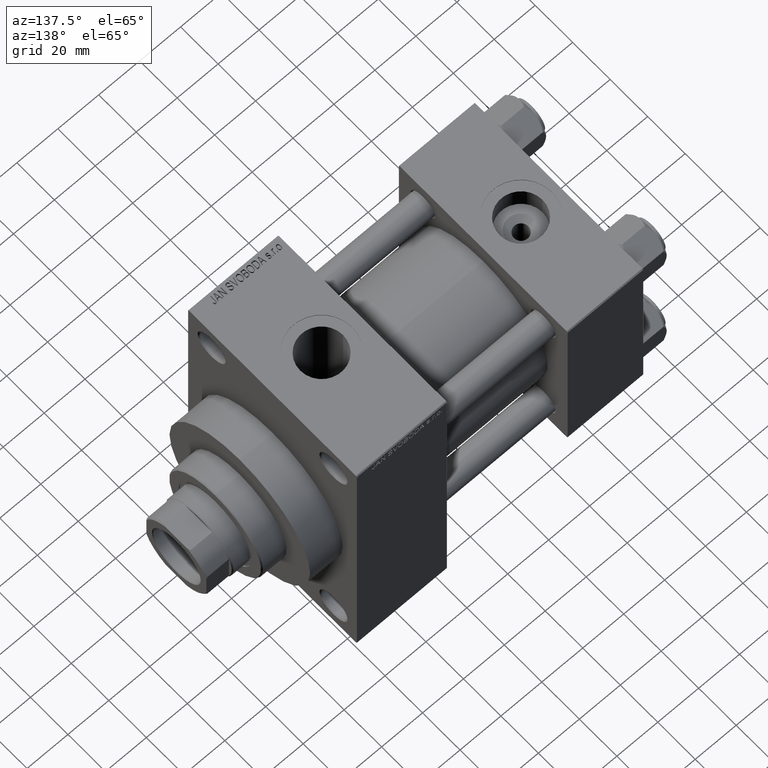
[diagram: clean part render]
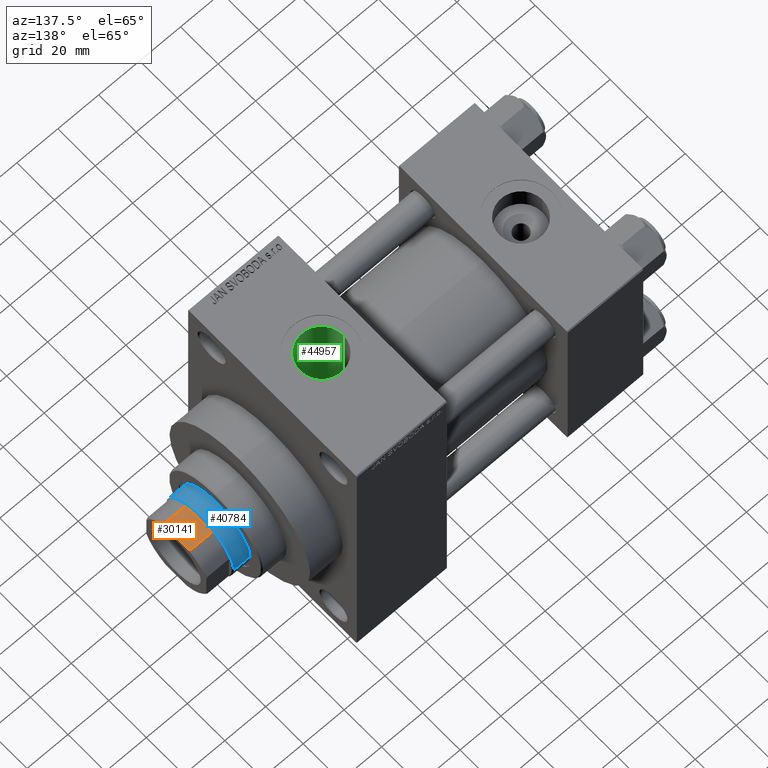
[diagram: same view with three faces highlighted in distinct colors, each labeled with its STEP entity id]
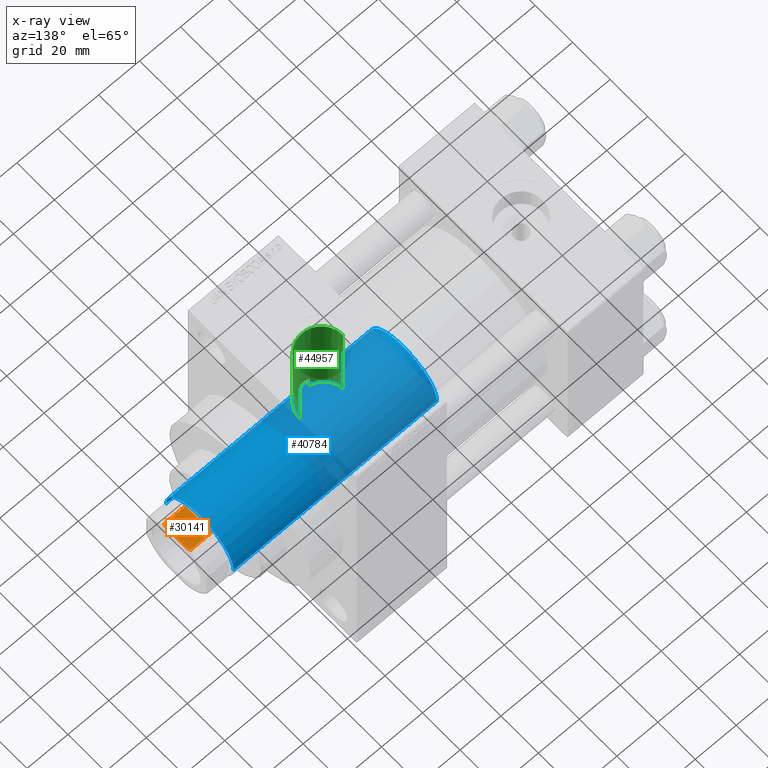
[diagram: x-ray of the same camera — body ghosted, the three highlighted faces saturated]
A machine part, auxiliary view with three faces highlighted in distinct colors.
The next image is the same camera in x-ray (body ghosted, the three faces saturated) — at least one of them is partly hidden behind the body in this view.
Their STEP definitions:

[orange] entity #30141 — the highlighted planar face has unit normal (0, 0, -1).
#598 = CARTESIAN_POINT ( 'NONE',  ( -16.00000000000000000, -16.00000000000000000, 150.0000000000000284 ) ) ;
#1169 = DIRECTION ( 'NONE',  ( -0.000000000000000000, -0.000000000000000000, 1.000000000000000000 ) ) ;
#1999 = CARTESIAN_POINT ( 'NONE',  ( 7.088723439378915359, -16.00000000000000000, 139.0000000000000000 ) ) ;
#3870 = VERTEX_POINT ( 'NONE', #31204 ) ;
#4221 = CARTESIAN_POINT ( 'NONE',  ( 7.088723439378915359, -16.00000000000000000, 149.5000000000000000 ) ) ;
#6235 = EDGE_CURVE ( 'NONE', #22852, #14662, #42317, .T. ) ;
#7188 = VECTOR ( 'NONE', #1169, 1000.000000000000000 ) ;
#7257 = ORIENTED_EDGE ( 'NONE', *, *, #10713, .T. ) ;
#7833 = VECTOR ( 'NONE', #46360, 1000.000000000000000 ) ;
#8308 = VERTEX_POINT ( 'NONE', #18653 ) ;
#9140 = CARTESIAN_POINT ( 'NONE',  ( -16.00000000000000000, -16.00000000000000000, 150.0000000000000284 ) ) ;
#10041 = VERTEX_POINT ( 'NONE', #21938 ) ;
#10195 = LINE ( 'NONE', #14015, #40765 ) ;
#10713 = EDGE_CURVE ( 'NONE', #8308, #21845, #36334, .T. ) ;
#11333 = DIRECTION ( 'NONE',  ( 0.000000000000000000, -0.000000000000000000, 1.000000000000000000 ) ) ;
#14015 = CARTESIAN_POINT ( 'NONE',  ( 7.088723439378915359, -16.00000000000000000, -0.001000000000001000089 ) ) ;
#14599 = CARTESIAN_POINT ( 'NONE',  ( -16.00000000000000000, -16.00000000000000000, 139.0000000000000000 ) ) ;
#14662 = VERTEX_POINT ( 'NONE', #28238 ) ;
#14712 = CARTESIAN_POINT ( 'NONE',  ( 6.197659614356010316, -16.00000000000000000, 149.8468915343184449 ) ) ;
#15816 = CARTESIAN_POINT ( 'NONE',  ( -6.197659614355979230, -16.00000000000000000, 149.8468915343184165 ) ) ;
#16197 = CARTESIAN_POINT ( 'NONE',  ( -7.088723439378915359, -16.00000000000000000, -0.001000000000001000089 ) ) ;
#16562 = ORIENTED_EDGE ( 'NONE', *, *, #37999, .T. ) ;
#16609 = AXIS2_PLACEMENT_3D ( 'NONE', #598, #26374, #11333 ) ;
#18653 = CARTESIAN_POINT ( 'NONE',  ( -7.088723439378915359, -16.00000000000000000, 139.0000000000000000 ) ) ;
#18974 = PLANE ( 'NONE',  #16609 ) ;
#19282 = EDGE_CURVE ( 'NONE', #3870, #14662, #27285, .T. ) ;
#19440 = FACE_OUTER_BOUND ( 'NONE', #46282, .T. ) ;
#21845 = VERTEX_POINT ( 'NONE', #1999 ) ;
#21938 = CARTESIAN_POINT ( 'NONE',  ( -7.088723439378915359, -16.00000000000000000, 149.4999999999999716 ) ) ;
#22190 = VECTOR ( 'NONE', #33216, 1000.000000000000000 ) ;
#22363 = CARTESIAN_POINT ( 'NONE',  ( 7.088723439378915359, -16.00000000000000000, 149.5000000000000000 ) ) ;
#22411 = EDGE_CURVE ( 'NONE', #8308, #10041, #44391, .T. ) ;
#22852 = VERTEX_POINT ( 'NONE', #4221 ) ;
#23219 = CARTESIAN_POINT ( 'NONE',  ( -7.088723439378915359, -16.00000000000000000, 149.4999999999999716 ) ) ;
#23508 = ORIENTED_EDGE ( 'NONE', *, *, #23565, .T. ) ;
#23565 = EDGE_CURVE ( 'NONE', #21845, #22852, #10195, .T. ) ;
#25454 = DIRECTION ( 'NONE',  ( -0.000000000000000000, -0.000000000000000000, 1.000000000000000000 ) ) ;
#26374 = DIRECTION ( 'NONE',  ( 0.000000000000000000, 1.000000000000000000, 0.000000000000000000 ) ) ;
#27285 = LINE ( 'NONE', #9140, #7833 ) ;
#28238 = CARTESIAN_POINT ( 'NONE',  ( 5.744562646537962003, -16.00000000000000000, 150.0000000000000284 ) ) ;
#29545 = CARTESIAN_POINT ( 'NONE',  ( 6.645462757301098478, -16.00000000000000000, 149.6795515649599793 ) ) ;
#30141 = ADVANCED_FACE ( 'NONE', ( #19440 ), #18974, .F. ) ;
#30399 = CARTESIAN_POINT ( 'NONE',  ( -6.645462757301091372, -16.00000000000000000, 149.6795515649600077 ) ) ;
#31204 = CARTESIAN_POINT ( 'NONE',  ( -5.744562646537909600, -16.00000000000000000, 150.0000000000000284 ) ) ;
#33216 = DIRECTION ( 'NONE',  ( 1.000000000000000000, 0.000000000000000000, 0.000000000000000000 ) ) ;
#33956 = CARTESIAN_POINT ( 'NONE',  ( -5.744562646537909600, -16.00000000000000000, 150.0000000000000284 ) ) ;
#34322 = B_SPLINE_CURVE_WITH_KNOTS ( 'NONE', 3,
 ( #33956, #15816, #30399, #23219 ),
 .UNSPECIFIED., .F., .F.,
 ( 4, 4 ),
 ( 0.000000000000000000, 0.001434143729551196718 ),
 .UNSPECIFIED. ) ;
#36334 = LINE ( 'NONE', #14599, #22190 ) ;
#36846 = ORIENTED_EDGE ( 'NONE', *, *, #22411, .F. ) ;
#36916 = ORIENTED_EDGE ( 'NONE', *, *, #19282, .F. ) ;
#37999 = EDGE_CURVE ( 'NONE', #3870, #10041, #34322, .T. ) ;
#38523 = ORIENTED_EDGE ( 'NONE', *, *, #6235, .T. ) ;
#40765 = VECTOR ( 'NONE', #25454, 1000.000000000000000 ) ;
#42317 = B_SPLINE_CURVE_WITH_KNOTS ( 'NONE', 3,
 ( #22363, #29545, #14712, #44107 ),
 .UNSPECIFIED., .F., .F.,
 ( 4, 4 ),
 ( 0.000000000000000000, 0.001434143729551137954 ),
 .UNSPECIFIED. ) ;
#44107 = CARTESIAN_POINT ( 'NONE',  ( 5.744562646537962003, -16.00000000000000000, 150.0000000000000284 ) ) ;
#44391 = LINE ( 'NONE', #16197, #7188 ) ;
#46282 = EDGE_LOOP ( 'NONE', ( #23508, #38523, #36916, #16562, #36846, #7257 ) ) ;
#46360 = DIRECTION ( 'NONE',  ( 1.000000000000000000, 0.000000000000000000, 0.000000000000000000 ) ) ;

[blue] entity #40784 — the highlighted cylindrical surface (partial cylindrical patch) has radius 18 mm, axis along (-1, 0, 0).
#571 = CARTESIAN_POINT ( 'NONE',  ( 0.000000000000000000, 0.000000000000000000, 39.00000000000000000 ) ) ;
#898 = VECTOR ( 'NONE', #34425, 1000.000000000000000 ) ;
#4253 = CARTESIAN_POINT ( 'NONE',  ( 0.000000000000000000, 0.000000000000000000, 138.5000000000000000 ) ) ;
#4828 = LINE ( 'NONE', #44956, #898 ) ;
#8089 = ORIENTED_EDGE ( 'NONE', *, *, #42388, .T. ) ;
#8095 = CIRCLE ( 'NONE', #35557, 18.00000000000000000 ) ;
#8938 = ORIENTED_EDGE ( 'NONE', *, *, #46135, .T. ) ;
#9132 = VERTEX_POINT ( 'NONE', #23445 ) ;
#9826 = CARTESIAN_POINT ( 'NONE',  ( 18.00000000000000000, 2.204364238465235428E-15, 138.5000000000000000 ) ) ;
#11411 = DIRECTION ( 'NONE',  ( 1.000000000000000000, 0.000000000000000000, 0.000000000000000000 ) ) ;
#12492 = EDGE_LOOP ( 'NONE', ( #27262, #8938, #8089, #31188 ) ) ;
#12548 = EDGE_CURVE ( 'NONE', #18602, #9132, #4828, .T. ) ;
#14022 = AXIS2_PLACEMENT_3D ( 'NONE', #20757, #36008, #43195 ) ;
#14282 = FACE_OUTER_BOUND ( 'NONE', #12492, .T. ) ;
#14414 = VERTEX_POINT ( 'NONE', #21403 ) ;
#14822 = VECTOR ( 'NONE', #35685, 1000.000000000000000 ) ;
#18602 = VERTEX_POINT ( 'NONE', #9826 ) ;
#20757 = CARTESIAN_POINT ( 'NONE',  ( 0.000000000000000000, 0.000000000000000000, 139.0000000000000000 ) ) ;
#20867 = AXIS2_PLACEMENT_3D ( 'NONE', #571, #39952, #33019 ) ;
#20963 = EDGE_CURVE ( 'NONE', #26723, #9132, #26204, .T. ) ;
#21403 = CARTESIAN_POINT ( 'NONE',  ( -18.00000000000000000, 0.000000000000000000, 138.5000000000000000 ) ) ;
#23445 = CARTESIAN_POINT ( 'NONE',  ( 18.00000000000000000, 2.204364238465235428E-15, 39.00000000000000000 ) ) ;
#24694 = CARTESIAN_POINT ( 'NONE',  ( -18.00000000000000000, 0.000000000000000000, 139.0000000000000000 ) ) ;
#25039 = CYLINDRICAL_SURFACE ( 'NONE', #14022, 18.00000000000000000 ) ;
#26204 = CIRCLE ( 'NONE', #20867, 18.00000000000000000 ) ;
#26206 = DIRECTION ( 'NONE',  ( 0.000000000000000000, 0.000000000000000000, -1.000000000000000000 ) ) ;
#26723 = VERTEX_POINT ( 'NONE', #40420 ) ;
#27262 = ORIENTED_EDGE ( 'NONE', *, *, #12548, .F. ) ;
#28295 = LINE ( 'NONE', #24694, #14822 ) ;
#31188 = ORIENTED_EDGE ( 'NONE', *, *, #20963, .T. ) ;
#33019 = DIRECTION ( 'NONE',  ( 1.000000000000000000, 0.000000000000000000, 0.000000000000000000 ) ) ;
#34425 = DIRECTION ( 'NONE',  ( -0.000000000000000000, -0.000000000000000000, -1.000000000000000000 ) ) ;
#35557 = AXIS2_PLACEMENT_3D ( 'NONE', #4253, #26206, #11411 ) ;
#35685 = DIRECTION ( 'NONE',  ( -0.000000000000000000, -0.000000000000000000, -1.000000000000000000 ) ) ;
#36008 = DIRECTION ( 'NONE',  ( -0.000000000000000000, -0.000000000000000000, -1.000000000000000000 ) ) ;
#39952 = DIRECTION ( 'NONE',  ( 0.000000000000000000, 0.000000000000000000, 1.000000000000000000 ) ) ;
#40420 = CARTESIAN_POINT ( 'NONE',  ( -18.00000000000000000, 0.000000000000000000, 39.00000000000000000 ) ) ;
#40784 = ADVANCED_FACE ( 'NONE', ( #14282 ), #25039, .T. ) ;
#42388 = EDGE_CURVE ( 'NONE', #14414, #26723, #28295, .T. ) ;
#43195 = DIRECTION ( 'NONE',  ( -1.000000000000000000, 0.000000000000000000, 0.000000000000000000 ) ) ;
#44956 = CARTESIAN_POINT ( 'NONE',  ( 18.00000000000000000, 2.204364238465235428E-15, 139.0000000000000000 ) ) ;
#46135 = EDGE_CURVE ( 'NONE', #18602, #14414, #8095, .T. ) ;

[green] entity #44957 — the highlighted cylindrical surface (edge-blend (fillet) strip) has radius 10.48 mm, axis along (0, 0, -1).
#307 = CARTESIAN_POINT ( 'NONE',  ( 112.2166163324468329, -9.788752968036767754, 23.00467774806669397 ) ) ;
#471 = VERTEX_POINT ( 'NONE', #3332 ) ;
#483 = ORIENTED_EDGE ( 'NONE', *, *, #11829, .F. ) ;
#2143 = CARTESIAN_POINT ( 'NONE',  ( 112.7400000000000375, -9.960060240781688279, 28.29836037653064906 ) ) ;
#2377 = DIRECTION ( 'NONE',  ( 0.000000000000000000, 0.000000000000000000, -1.000000000000000000 ) ) ;
#2595 = CARTESIAN_POINT ( 'NONE',  ( 119.6511764337021475, -9.831921411942650124, 28.34362233849841672 ) ) ;
#3191 = CARTESIAN_POINT ( 'NONE',  ( 105.5199999999999960, 3.061579607129328475E-15, 25.00000000000000000 ) ) ;
#3332 = CARTESIAN_POINT ( 'NONE',  ( 112.7400000000000375, -9.960060240781690055, 22.93026820601974691 ) ) ;
#3593 = DIRECTION ( 'NONE',  ( -0.000000000000000000, -0.000000000000000000, 1.000000000000000000 ) ) ;
#3888 = CARTESIAN_POINT ( 'NONE',  ( 112.7400000000000375, -9.960060240781690055, 22.93026820601974691 ) ) ;
#4128 = CARTESIAN_POINT ( 'NONE',  ( 126.4800000000000040, 1.283429845506425883E-15, 70.79999999999998295 ) ) ;
#4368 = CARTESIAN_POINT ( 'NONE',  ( 106.2133645239136825, -3.788497290311543253, 24.71686331191870778 ) ) ;
#4547 = FACE_OUTER_BOUND ( 'NONE', #44884, .T. ) ;
#4717 = VECTOR ( 'NONE', #3593, 1000.000000000000000 ) ;
#5074 = CARTESIAN_POINT ( 'NONE',  ( 105.6952564760870246, -1.928778934517584309, 24.92700825772722339 ) ) ;
#5888 = CARTESIAN_POINT ( 'NONE',  ( 116.0000000000000000, 0.000000000000000000, 70.79999999999998295 ) ) ;
#6178 = CARTESIAN_POINT ( 'NONE',  ( 126.2826880867323496, -2.065458053724757548, 29.93150493033226311 ) ) ;
#6406 = CARTESIAN_POINT ( 'NONE',  ( 126.0890390176183047, -2.865498728266692829, 29.86553233084089598 ) ) ;
#7972 = DIRECTION ( 'NONE',  ( 0.000000000000000000, 0.000000000000000000, -1.000000000000000000 ) ) ;
#8124 = DIRECTION ( 'NONE',  ( -1.000000000000000000, 0.000000000000000000, 0.000000000000000000 ) ) ;
#9529 = CARTESIAN_POINT ( 'NONE',  ( 113.5376865130923534, -10.19514556951083151, 28.21465150049998982 ) ) ;
#9769 = CARTESIAN_POINT ( 'NONE',  ( 116.8323486893805807, -10.48013219117956929, 28.11025684355166376 ) ) ;
#10221 = CARTESIAN_POINT ( 'NONE',  ( 122.4991569451228344, -8.231478667600773846, 28.84970080865382513 ) ) ;
#10355 = CARTESIAN_POINT ( 'NONE',  ( 110.2686167523512211, -8.790768987372253207, 23.40594614296279730 ) ) ;
#11829 = EDGE_CURVE ( 'NONE', #471, #31259, #43690, .T. ) ;
#11840 = CARTESIAN_POINT ( 'NONE',  ( 126.4800000000000040, 3.673940397618731677E-15, 30.00000000000000000 ) ) ;
#11966 = EDGE_CURVE ( 'NONE', #20719, #31259, #16318, .T. ) ;
#11998 = CARTESIAN_POINT ( 'NONE',  ( 107.2133851667944242, -5.737667069548098908, 24.33689057242902365 ) ) ;
#12889 = CARTESIAN_POINT ( 'NONE',  ( 125.6812555715534359, -4.034166111592118575, 29.73008374493930717 ) ) ;
#13116 = CARTESIAN_POINT ( 'NONE',  ( 120.4065122839482171, -9.517374506241297993, 28.45078537450224587 ) ) ;
#13583 = ORIENTED_EDGE ( 'NONE', *, *, #19120, .T. ) ;
#13968 = ORIENTED_EDGE ( 'NONE', *, *, #11966, .T. ) ;
#14853 = CARTESIAN_POINT ( 'NONE',  ( 111.7027284824027902, -9.574030923381080527, 23.09567255457320911 ) ) ;
#15751 = DIRECTION ( 'NONE',  ( 0.000000000000000000, 0.000000000000000000, -1.000000000000000000 ) ) ;
#15811 = CARTESIAN_POINT ( 'NONE',  ( 105.8813829677837361, -2.742400269040761174, 24.85060264423317733 ) ) ;
#16047 = CARTESIAN_POINT ( 'NONE',  ( 105.5199999999999818, -0.5526487399564723457, 24.99999999999999645 ) ) ;
#16318 = B_SPLINE_CURVE_WITH_KNOTS ( 'NONE', 3,
 ( #27919, #17391, #39102, #24100, #6178, #6406, #42240, #12889, #38879, #45828, #17148, #45597, #24326, #42947, #10221, #20974, #31717, #20042, #13116, #2595, #27457, #46050, #42488, #9769, #42016, #27680, #34839, #9529, #20743, #2143 ),
 .UNSPECIFIED., .F., .F.,
 ( 4, 2, 2, 2, 2, 2, 2, 2, 2, 2, 2, 2, 2, 2, 4 ),
 ( 0.01983178583558418279, 0.02107005794959068007, 0.02230833006359717388, 0.02354660217760367116, 0.02478487429161016498, 0.02726141851962313872, 0.02849969063362964294, 0.02973796274763614023, 0.03097623486164264445, 0.03221450697564914173, 0.03345277908965564595, 0.03469105120366214323, 0.03716759543167514473, 0.03840586754568164896, 0.03964413965968814624 ),
 .UNSPECIFIED. ) ;
#17085 = DIRECTION ( 'NONE',  ( 1.000000000000000000, 0.000000000000000000, 0.000000000000000000 ) ) ;
#17148 = CARTESIAN_POINT ( 'NONE',  ( 124.4977574635255309, -6.188339515081475284, 29.36182159556007321 ) ) ;
#17391 = CARTESIAN_POINT ( 'NONE',  ( 126.4799999999999756, -0.4140493469419984085, 30.00000000000000711 ) ) ;
#17520 = CARTESIAN_POINT ( 'NONE',  ( 109.3891897638273747, -8.150065112751541108, 23.63667431967811794 ) ) ;
#18676 = CARTESIAN_POINT ( 'NONE',  ( 105.5199999999999960, 3.061579607129328475E-15, 25.00000000000000000 ) ) ;
#18698 = VECTOR ( 'NONE', #2377, 1000.000000000000000 ) ;
#19120 = EDGE_CURVE ( 'NONE', #471, #26780, #22087, .T. ) ;
#19156 = CARTESIAN_POINT ( 'NONE',  ( 105.9569663818569296, -3.007160148706873759, 24.81987104649663323 ) ) ;
#19643 = CIRCLE ( 'NONE', #30316, 10.48000000000000398 ) ;
#20042 = CARTESIAN_POINT ( 'NONE',  ( 120.7754301067500791, -9.337894368229042286, 28.51050477243454040 ) ) ;
#20719 = VERTEX_POINT ( 'NONE', #11840 ) ;
#20743 = CARTESIAN_POINT ( 'NONE',  ( 113.1356366639055295, -10.08955499213376683, 28.25278262901559501 ) ) ;
#20974 = CARTESIAN_POINT ( 'NONE',  ( 121.8407164529725009, -8.711045480795171159, 28.70853818005239688 ) ) ;
#21055 = AXIS2_PLACEMENT_3D ( 'NONE', #23398, #15751, #8124 ) ;
#22087 = B_SPLINE_CURVE_WITH_KNOTS ( 'NONE', 3,
 ( #3888, #307, #14853, #43074, #10355, #17520, #46642, #26325, #22267, #11998, #40891, #22503, #4368, #19156, #15811, #29918, #5074, #33485, #16047, #18676 ),
 .UNSPECIFIED., .F., .F.,
 ( 4, 2, 2, 2, 2, 2, 2, 2, 2, 4 ),
 ( 0.01988964932192578000, 0.02154756030224161401, 0.02320547128255744801, 0.02486338226287328201, 0.02652129324318911602, 0.02817920422350495002, 0.02983711520382078403, 0.03066607069397870450, 0.03149502618413661803, 0.03315293716445245897 ),
 .UNSPECIFIED. ) ;
#22265 = CARTESIAN_POINT ( 'NONE',  ( 112.7400000000000375, -9.960060240781688279, 28.29836037653064906 ) ) ;
#22267 = CARTESIAN_POINT ( 'NONE',  ( 107.8536174240124694, -6.615275848649978307, 24.11313317637568687 ) ) ;
#22376 = ORIENTED_EDGE ( 'NONE', *, *, #32705, .T. ) ;
#22503 = CARTESIAN_POINT ( 'NONE',  ( 106.4236355937512144, -4.292206019337025502, 24.63377942571624857 ) ) ;
#22625 = VECTOR ( 'NONE', #7972, 1000.000000000000000 ) ;
#23398 = CARTESIAN_POINT ( 'NONE',  ( 116.0000000000000000, 0.000000000000000000, 93.79999999999999716 ) ) ;
#24100 = CARTESIAN_POINT ( 'NONE',  ( 126.3561768723854328, -1.659168348792956937, 29.95693324364475174 ) ) ;
#24326 = CARTESIAN_POINT ( 'NONE',  ( 123.4108071772773201, -7.421314247701547906, 29.06898203862667529 ) ) ;
#24332 = CARTESIAN_POINT ( 'NONE',  ( 105.5199999999999960, 0.000000000000000000, 93.79999999999999716 ) ) ;
#24905 = ORIENTED_EDGE ( 'NONE', *, *, #29997, .F. ) ;
#26325 = CARTESIAN_POINT ( 'NONE',  ( 108.2050283705145830, -7.025831027277332552, 23.99580452550001297 ) ) ;
#26339 = EDGE_CURVE ( 'NONE', #35223, #26780, #35078, .T. ) ;
#26780 = VERTEX_POINT ( 'NONE', #3191 ) ;
#27457 = CARTESIAN_POINT ( 'NONE',  ( 119.2647576281308517, -9.966984633129875704, 28.29617465522276731 ) ) ;
#27680 = CARTESIAN_POINT ( 'NONE',  ( 114.7699339040235600, -10.41578934976507576, 28.13383227326703206 ) ) ;
#27919 = CARTESIAN_POINT ( 'NONE',  ( 126.4800000000000040, 3.673940397618731677E-15, 30.00000000000000000 ) ) ;
#29918 = CARTESIAN_POINT ( 'NONE',  ( 105.7506109030364172, -2.203904040410064269, 24.90413656399008246 ) ) ;
#29997 = EDGE_CURVE ( 'NONE', #37916, #35223, #19643, .T. ) ;
#30316 = AXIS2_PLACEMENT_3D ( 'NONE', #5888, #31428, #17085 ) ;
#31259 = VERTEX_POINT ( 'NONE', #22265 ) ;
#31428 = DIRECTION ( 'NONE',  ( -0.000000000000000000, -0.000000000000000000, -1.000000000000000000 ) ) ;
#31717 = CARTESIAN_POINT ( 'NONE',  ( 121.4955340743380532, -8.933090684329160425, 28.63992046840855821 ) ) ;
#32705 = EDGE_CURVE ( 'NONE', #37916, #20719, #40679, .T. ) ;
#33485 = CARTESIAN_POINT ( 'NONE',  ( 105.5634374036090293, -1.103933992171573841, 24.98169420149657682 ) ) ;
#34839 = CARTESIAN_POINT ( 'NONE',  ( 114.3547903624770328, -10.35843936797069276, 28.15511119385355698 ) ) ;
#35078 = LINE ( 'NONE', #24332, #18698 ) ;
#35223 = VERTEX_POINT ( 'NONE', #45268 ) ;
#37794 = CARTESIAN_POINT ( 'NONE',  ( 126.4800000000000040, 1.283429845506426277E-15, 93.79999999999999716 ) ) ;
#37916 = VERTEX_POINT ( 'NONE', #4128 ) ;
#38184 = CYLINDRICAL_SURFACE ( 'NONE', #21055, 10.48000000000000398 ) ;
#38288 = ORIENTED_EDGE ( 'NONE', *, *, #26339, .F. ) ;
#38879 = CARTESIAN_POINT ( 'NONE',  ( 125.5132943898858429, -4.415432476193855926, 29.67559266697257314 ) ) ;
#39102 = CARTESIAN_POINT ( 'NONE',  ( 126.4550640607020284, -0.8335913317593999228, 29.99126230196788967 ) ) ;
#39864 = CARTESIAN_POINT ( 'NONE',  ( 112.7400000000000375, -9.960060240781688279, 93.79999999999999716 ) ) ;
#40679 = LINE ( 'NONE', #37794, #22625 ) ;
#40891 = CARTESIAN_POINT ( 'NONE',  ( 106.9226781161778632, -5.266119555344897840, 24.44410166351154245 ) ) ;
#42016 = CARTESIAN_POINT ( 'NONE',  ( 116.0079132330771188, -10.51264281222109886, 28.09784841831593383 ) ) ;
#42240 = CARTESIAN_POINT ( 'NONE',  ( 125.9688766884320188, -3.259248874892654690, 29.82498403132067466 ) ) ;
#42488 = CARTESIAN_POINT ( 'NONE',  ( 118.0676511321233022, -10.28246626870992309, 28.18289933756999233 ) ) ;
#42947 = CARTESIAN_POINT ( 'NONE',  ( 122.8130789427704315, -7.973576581528550200, 28.92237366509943186 ) ) ;
#43074 = CARTESIAN_POINT ( 'NONE',  ( 110.7309451898282049, -9.075553538226481365, 23.29606161660609587 ) ) ;
#43690 = LINE ( 'NONE', #39864, #4717 ) ;
#44884 = EDGE_LOOP ( 'NONE', ( #24905, #22376, #13968, #483, #13583, #38288 ) ) ;
#44957 = ADVANCED_FACE ( 'NONE', ( #4547 ), #38184, .F. ) ;
#45268 = CARTESIAN_POINT ( 'NONE',  ( 105.5199999999999960, 0.000000000000000000, 70.79999999999998295 ) ) ;
#45597 = CARTESIAN_POINT ( 'NONE',  ( 123.6953313842686839, -7.126116182886367945, 29.14312091195551346 ) ) ;
#45828 = CARTESIAN_POINT ( 'NONE',  ( 124.9516850616486465, -5.511024492678206599, 29.49874548845620481 ) ) ;
#46050 = CARTESIAN_POINT ( 'NONE',  ( 118.4739236950475174, -10.19211099814793187, 28.21586709986687680 ) ) ;
#46642 = CARTESIAN_POINT ( 'NONE',  ( 108.9710119791482583, -7.792124981740101930, 23.75802442794437397 ) ) ;